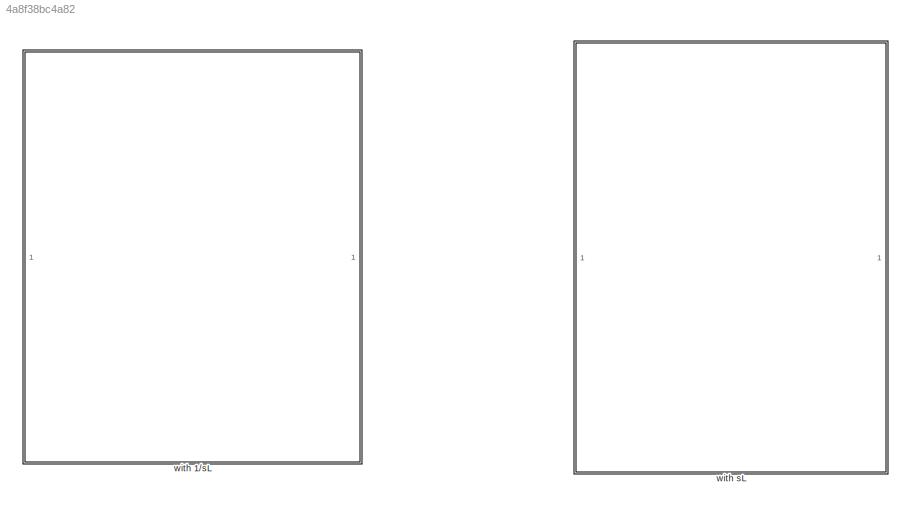
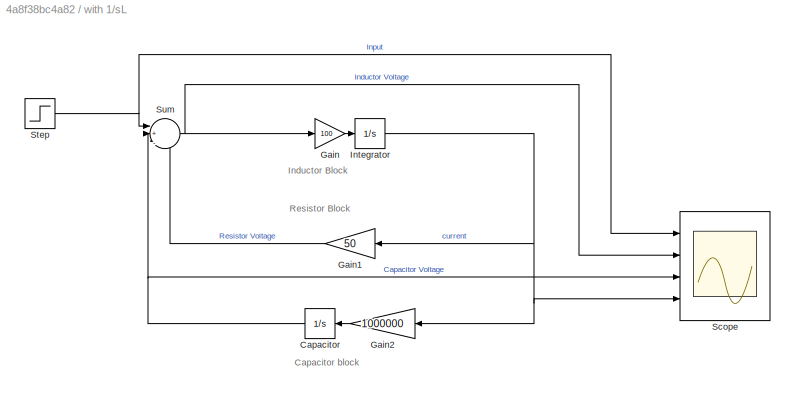
MODEL slx_4a8f38bc4a82
KIND model
CONFIG AbsTol = auto
CONFIG EnableMultiTasking = off
CONFIG FixedStep = auto
CONFIG MaxStep = auto
CONFIG MinStep = auto
CONFIG RelTol = 1e-3
CONFIG SampleTimeConstraint = Unconstrained
CONFIG Solver = VariableStepAuto
CONFIG SolverName = VariableStepAuto
CONFIG StartTime = 0.0
CONFIG StopTime = 0.02
BLOCK [SubSystem] with 1//sL
  Ports = []
  RequestExecContextInheritance = off
  Variant = off
BLOCK [Integrator] with 1//sL/Capacitor
  Ports = [1, 1]
BLOCK [Gain] with 1//sL/Gain
  Gain = 100
  OutDataTypeStr = Inherit: Inherit via internal rule
  ParamDataTypeStr = Inherit: Inherit via internal rule
  SaturateOnIntegerOverflow = off
BLOCK [Gain] with 1//sL/Gain1
  Gain = 50
  OutDataTypeStr = Inherit: Inherit via internal rule
  ParamDataTypeStr = Inherit: Inherit via internal rule
  SaturateOnIntegerOverflow = off
BLOCK [Gain] with 1//sL/Gain2
  Gain = 1000000
  OutDataTypeStr = Inherit: Inherit via internal rule
  ParamDataTypeStr = Inherit: Inherit via internal rule
  SaturateOnIntegerOverflow = off
BLOCK [Integrator] with 1//sL/Integrator
  Ports = [1, 1]
BLOCK [Scope] with 1//sL/Scope
  NumInputPorts = 4
  Ports = [4]
  ScopeSpecificationString = Simulink.scopes.TimeScopeBlockCfg('CurrentConfiguration', extmgr.ConfigurationSet(extmgr.Configuration('Core','General UI',true),extmgr.Configuration('Core','Source UI',true),extmgr.Configuration('Sources','WiredSimulink',true),extmgr.Configuration('Visuals','Time Domain',true,'SerializedDisplays',{struct('MinYLimReal','-0.125','MaxYLimReal','1.125','YLabelReal','','MinYLimMag','0.00000','MaxYLimM...<+3417ch>
BLOCK [Step] with 1//sL/Step
  SampleTime = 0
  Time = 0.01
BLOCK [Sum] with 1//sL/Sum
  IconShape = round
  InputSameDT = off
  Inputs = |+|--
  OutDataTypeStr = Inherit: Inherit via internal rule
  Ports = [3, 1]
  SaturateOnIntegerOverflow = off
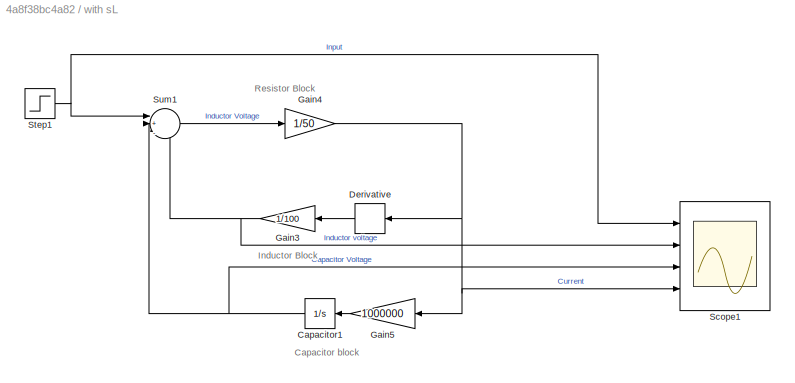
BLOCK [SubSystem] with sL
  Ports = []
  RequestExecContextInheritance = off
  Variant = off
BLOCK [Integrator] with sL/Capacitor1
  Ports = [1, 1]
BLOCK [Derivative] with sL/Derivative
  CoefficientInTFapproximation = 0
BLOCK [Gain] with sL/Gain3
  Gain = 1/100
  OutDataTypeStr = Inherit: Inherit via internal rule
  ParamDataTypeStr = Inherit: Inherit via internal rule
  SaturateOnIntegerOverflow = off
BLOCK [Gain] with sL/Gain4
  Gain = 1/50
  OutDataTypeStr = Inherit: Inherit via internal rule
  ParamDataTypeStr = Inherit: Inherit via internal rule
  SaturateOnIntegerOverflow = off
BLOCK [Gain] with sL/Gain5
  Gain = 1000000
  OutDataTypeStr = Inherit: Inherit via internal rule
  ParamDataTypeStr = Inherit: Inherit via internal rule
  SaturateOnIntegerOverflow = off
BLOCK [Scope] with sL/Scope1
  NumInputPorts = 4
  Ports = [4]
  ScopeSpecificationString = Simulink.scopes.TimeScopeBlockCfg('CurrentConfiguration', extmgr.ConfigurationSet(extmgr.Configuration('Core','General UI',true),extmgr.Configuration('Core','Source UI',true),extmgr.Configuration('Sources','WiredSimulink',true),extmgr.Configuration('Visuals','Time Domain',true,'SerializedDisplays',{struct('MinYLimReal','0.9','MaxYLimReal','1.1','YLabelReal','','MinYLimMag','0.9','MaxYLimMag','1.1'...<+3407ch>
BLOCK [Step] with sL/Step1
  SampleTime = 0
  Time = 0
BLOCK [Sum] with sL/Sum1
  IconShape = round
  InputSameDT = off
  Inputs = |+|--
  OutDataTypeStr = Inherit: Inherit via internal rule
  Ports = [3, 1]
  SaturateOnIntegerOverflow = off
ANNOTATION with 1//sL: Resistor Block
ANNOTATION with 1//sL: Capacitor block
ANNOTATION with 1//sL: Inductor Block
ANNOTATION with sL: Resistor Block
ANNOTATION with sL: Capacitor block
ANNOTATION with sL: Inductor Block
NET with 1//sL/Capacitor:1 -> with 1//sL/Scope:3, with 1//sL/Sum:2
LINE with 1//sL/Gain1:1 -> with 1//sL/Sum:3
LINE with 1//sL/Gain2:1 -> with 1//sL/Capacitor:1
LINE with 1//sL/Gain:1 -> with 1//sL/Integrator:1
NET with 1//sL/Integrator:1 -> with 1//sL/Gain1:1, with 1//sL/Gain2:1, with 1//sL/Scope:4
NET with 1//sL/Step:1 -> with 1//sL/Scope:1, with 1//sL/Sum:1
NET with 1//sL/Sum:1 -> with 1//sL/Gain:1, with 1//sL/Scope:2
NET with sL/Capacitor1:1 -> with sL/Scope1:3, with sL/Sum1:2
LINE with sL/Derivative:1 -> with sL/Gain3:1
NET with sL/Gain3:1 -> with sL/Scope1:2, with sL/Sum1:3
NET with sL/Gain4:1 -> with sL/Derivative:1, with sL/Gain5:1, with sL/Scope1:4
LINE with sL/Gain5:1 -> with sL/Capacitor1:1
NET with sL/Step1:1 -> with sL/Scope1:1, with sL/Sum1:1
LINE with sL/Sum1:1 -> with sL/Gain4:1
note: NET lines group one-source signal fan-out (src -> all destinations, sorted); 1:1 wires keep LINE
